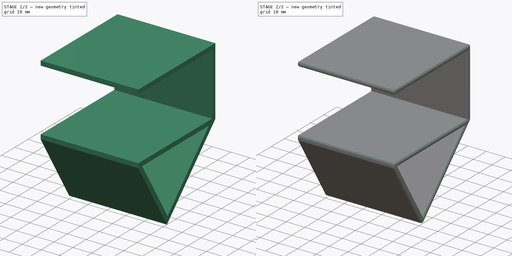
[diagram: build sequence overview — one tinted view per stage of 2, left to right]
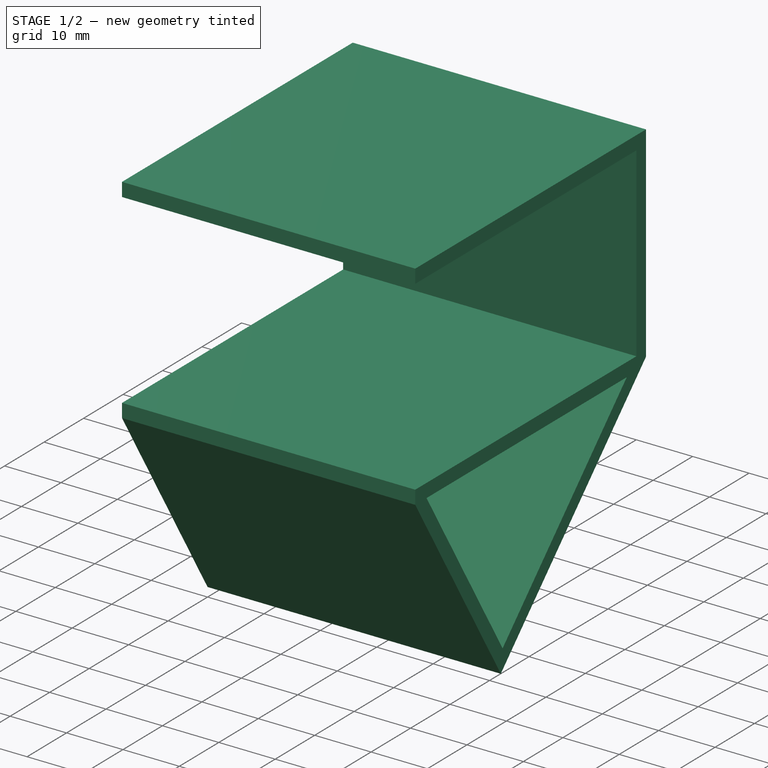
[diagram: stage 1 of 2 — iso view after this stage's code; geometry added in this stage tinted green]
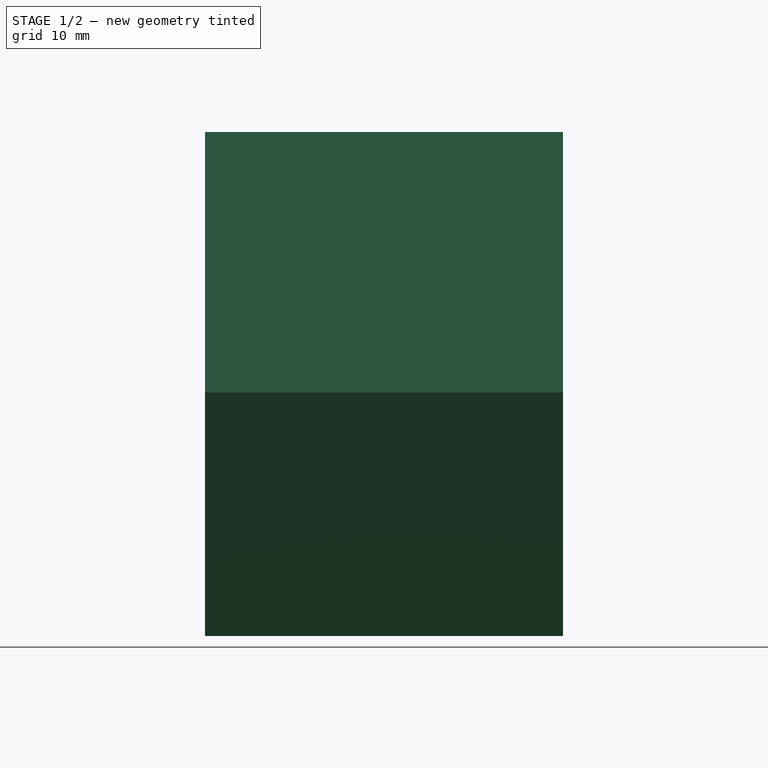
[diagram: stage 1 of 2 — front view after this stage's code; geometry added in this stage tinted green]
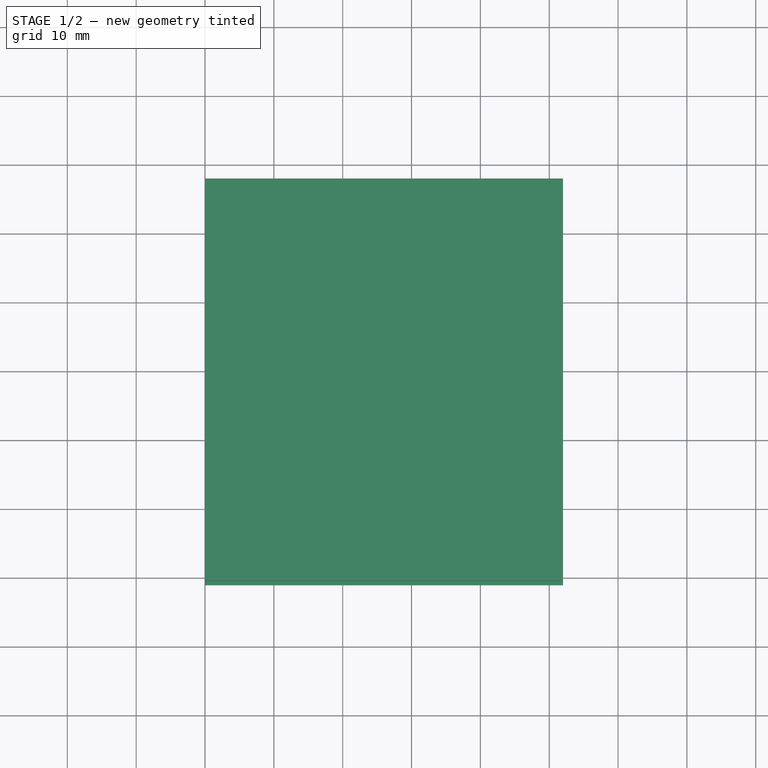
[diagram: stage 1 of 2 — top view after this stage's code; geometry added in this stage tinted green]
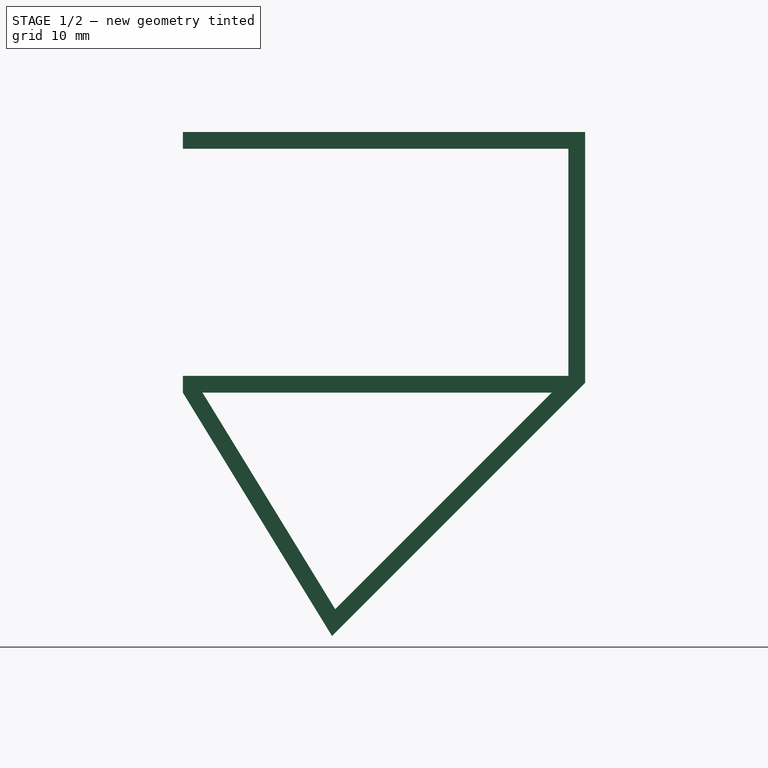
[diagram: stage 1 of 2 — right view after this stage's code; geometry added in this stage tinted green]
FCSTD DOCUMENT  (FreeCAD 0.19R24276 (Git))
Label: MotionDetectorHolder
License: All rights reserved
LicenseURL: http://en.wikipedia.org/wiki/All_rights_reserved
objects: Sketcher::SketchObject×1, PartDesign::Pad×1, PartDesign::Fillet×1, PartDesign::Body×1, App::Part×1
note: 6 computed .brp shape members not serialized (recipe doc carries the construction recipe); baked Part::Feature solids carry a one-line shape summary decoded from their .brp

FEATURE [Sketcher::SketchObject] Sketch
  FullyConstrained = true
  MapMode = 5
  Placement = pos=(0,0,0) rot=(0.57735,0.57735,0.57735;2.0944rad)
  Support = -> [YZ_Plane001]
  sketch-geometry (15):
    g0: LineSegment StartX=-21.6604 StartY=73.2061 StartZ=0 EndX=36.7696 EndY=73.2061 EndZ=0
    g1: LineSegment StartX=36.7696 StartY=73.2061 StartZ=0 EndX=36.7696 EndY=36.7696 EndZ=0
    g2: LineSegment StartX=36.7696 StartY=36.7696 StartZ=0 EndX=0 EndY=0 EndZ=0
    g3: LineSegment StartX=0.46133 StartY=3.89787 StartZ=0 EndX=31.9096 EndY=35.3461 EndZ=0
    g4: LineSegment StartX=31.9096 StartY=35.3461 StartZ=0 EndX=-18.8105 EndY=35.3461 EndZ=0
    g5: LineSegment StartX=-21.6604 StartY=35.3461 StartZ=0 EndX=-21.6604 EndY=37.7761 EndZ=0
    g6: LineSegment StartX=-21.6604 StartY=37.7761 StartZ=0 EndX=34.3396 EndY=37.7761 EndZ=0
    g7: LineSegment StartX=34.3396 StartY=37.7761 StartZ=0 EndX=34.3396 EndY=70.7761 EndZ=0
    g8: LineSegment StartX=34.3396 StartY=70.7761 StartZ=0 EndX=-21.6604 EndY=70.7761 EndZ=0
    g9: LineSegment StartX=-21.6604 StartY=70.7761 StartZ=0 EndX=-21.6604 EndY=73.2061 EndZ=0
    g10: LineSegment StartX=-21.6604 StartY=35.3461 StartZ=0 EndX=3.6e-15 EndY=0 EndZ=0
    g11: LineSegment StartX=0.46133 StartY=3.89787 StartZ=0 EndX=-18.8105 EndY=35.3461 EndZ=0
    g12: LineSegment StartX=-18.8105 StartY=35.3461 StartZ=0 EndX=-20.8824 EndY=34.0764 EndZ=0
    g13: LineSegment StartX=31.9096 StartY=35.3461 StartZ=0 EndX=33.6278 EndY=33.6278 EndZ=0
    g14: LineSegment StartX=34.3396 StartY=70.7761 StartZ=0 EndX=36.7696 EndY=70.7761 EndZ=0
  constraints (44):
    c: Horizontal(g0)
    c: Coincident(g0,g1)
    c: Vertical(g1)
    c: Coincident(g1,g2)
    c: Coincident(g3,g4)
    c: Horizontal(g4)
    c: Vertical(g5)
    c: Coincident(g5,g6)
    c: Horizontal(g6)
    c: Coincident(g6,g7)
    c: Vertical(g7)
    c: Coincident(g7,g8)
    c: Horizontal(g8)
    c: Coincident(g8,g9)
    c: Coincident(g9,g0)
    c: Vertical(g9)
    c: Coincident(g10,g5)
    c: Coincident(g10,g2)
    c: Coincident(g11,g3)
    c: Coincident(g11,g4)
    c: Parallel(g10,g11)
    c: Parallel(g3,g2)
    c: Coincident(g12,g4)
    c: PointOnObject(g12,g10)
    c: Coincident(g13,g3)
    c: PointOnObject(g13,g2)
    c: Perpendicular(g2,g13)
    c: Perpendicular(g10,g12)
    c: Coincident(g14,g7)
    c: PointOnObject(g14,g1)
    c: Horizontal(g14)
    c: Equal(g9,g14)
    c: Equal(g14,g13)
    c: Equal(g13,g12)
    c: Equal(g12,g5)
    c: PointOnObject(g6,g3)
    c: DistanceY(g9,g9) = 2.43
    c: PointOnObject(g5,g9)
    c: PointOnObject(g5,g4)
    c: DistanceX(g0,g7) = 56
    c: DistanceY(g5,g8) = 33
    c: Angle(g4,g3) = 0.785398
    c: Distance(g1,g2) = 52
    c: Coincident(g2,g-1)
FEATURE [PartDesign::Pad] Pad
  Direction = (1,1,1)
  Length = 52
  Length2 = 100
  Placement = pos=(0,0,0) rot=(0.57735,0.57735,0.57735;2.0944rad)
  Profile = -> Sketch
  Type = 0
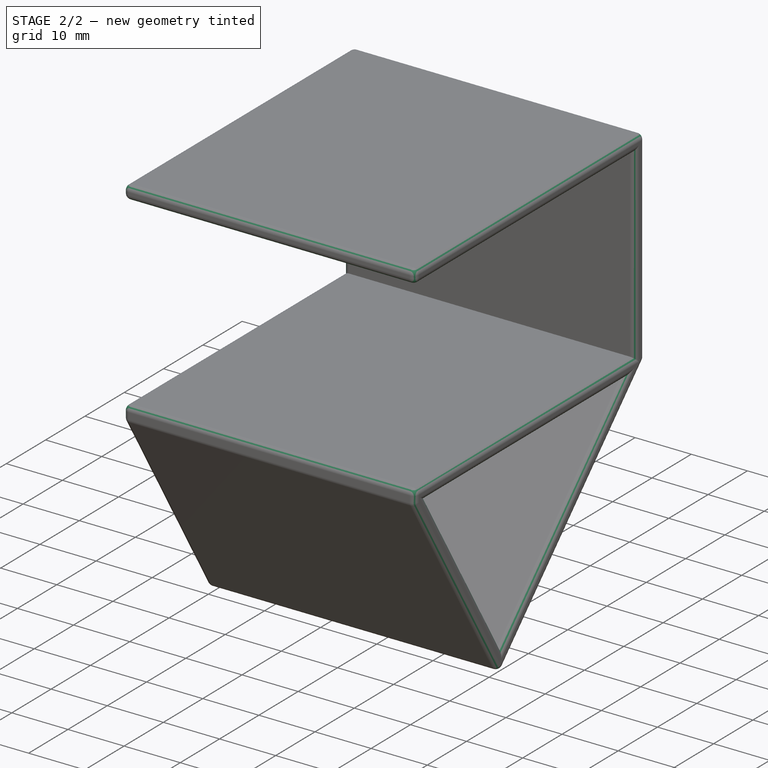
[diagram: stage 2 of 2 — iso view after this stage's code; geometry added in this stage tinted green]
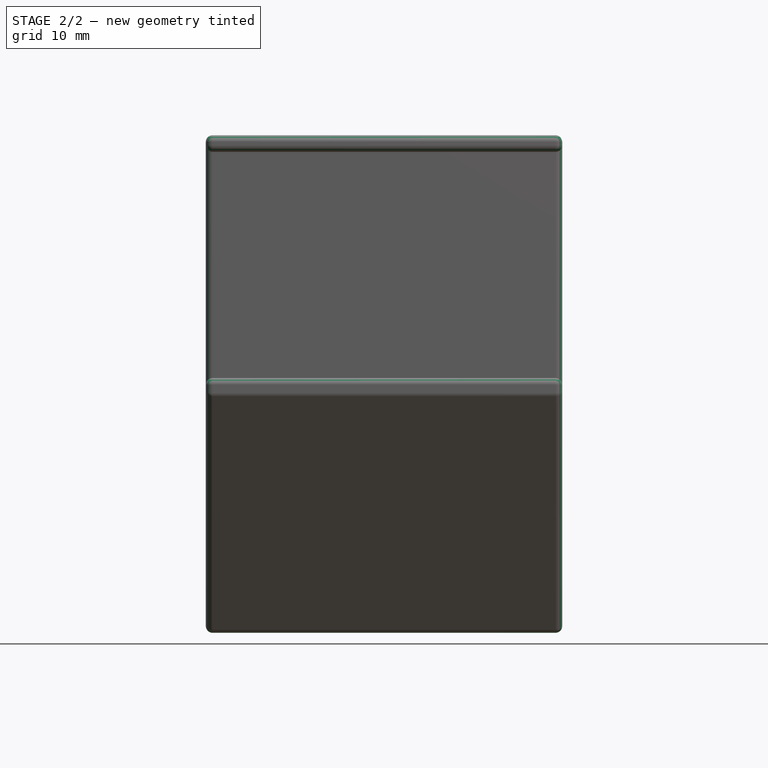
[diagram: stage 2 of 2 — front view after this stage's code; geometry added in this stage tinted green]
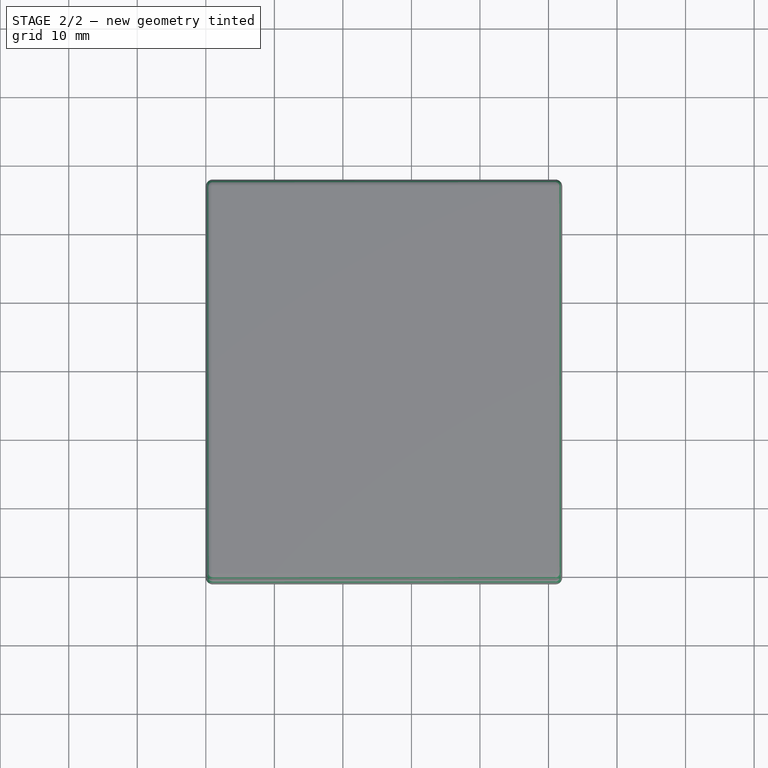
[diagram: stage 2 of 2 — top view after this stage's code; geometry added in this stage tinted green]
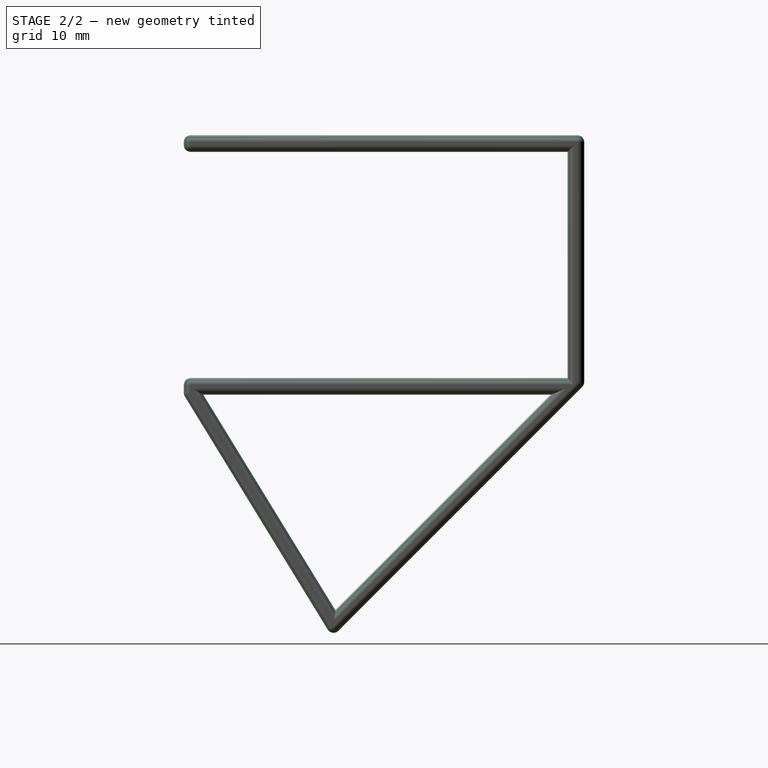
[diagram: stage 2 of 2 — right view after this stage's code; geometry added in this stage tinted green]
FEATURE [PartDesign::Fillet] Fillet
  Base = -> Pad [Face14,Face1,Face5,Edge23,Face13,Edge17,Edge20]
  BaseFeature = -> Pad
  Placement = pos=(0,0,0) rot=(0.57735,0.57735,0.57735;2.0944rad)
  Radius = 1
  SupportTransform = false
FEATURE [PartDesign::Body] Body
  Group = -> [Sketch,Pad,Fillet]
  Origin = -> Origin001
  Tip = -> Fillet
FEATURE [App::Part] Part
  Group = -> [Body]
  Origin = -> Origin
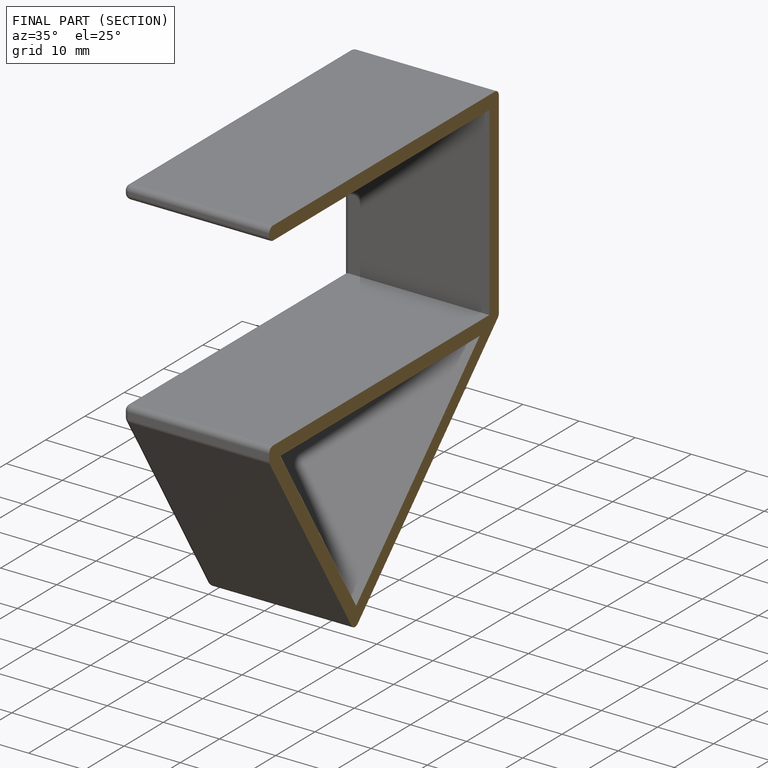
[diagram: finished part — half-section view (interior)]
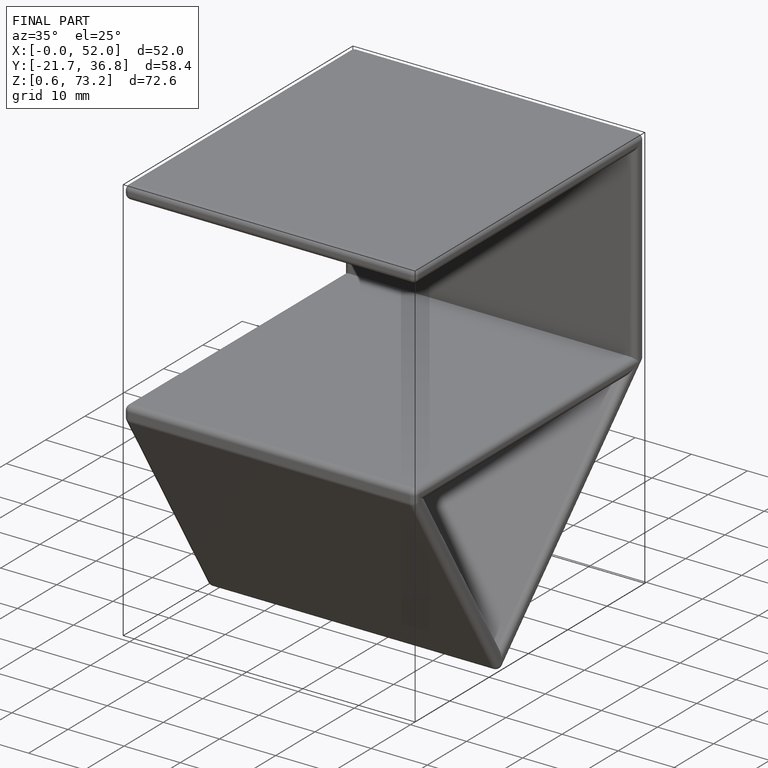
[diagram: finished part — iso view with bounding-box wireframe]
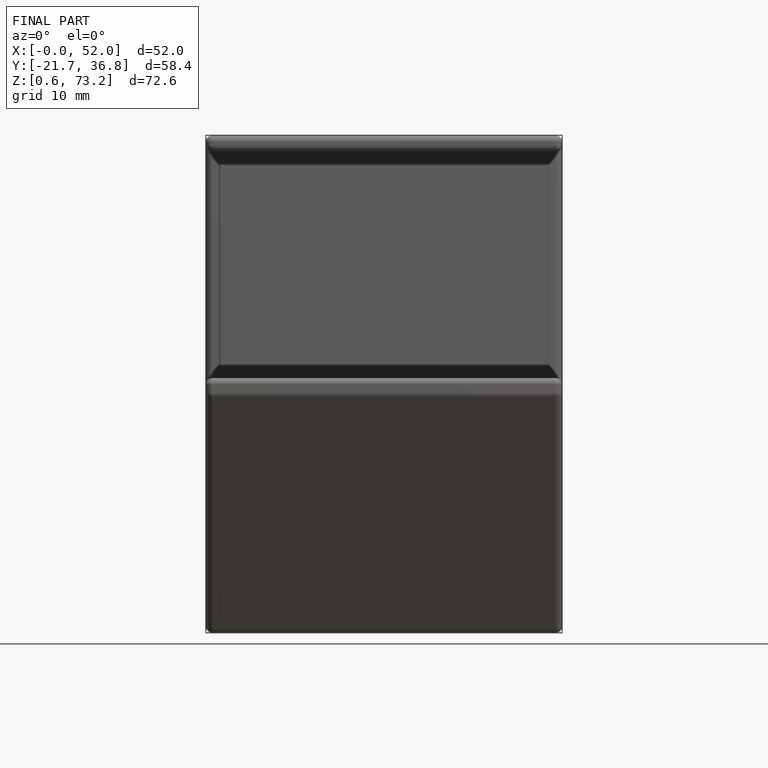
[diagram: finished part — front view with bounding-box wireframe]
